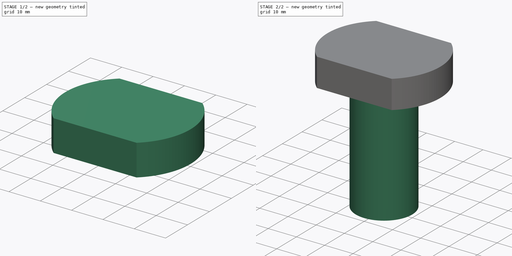
[diagram: build sequence overview — one tinted view per stage of 2, left to right]
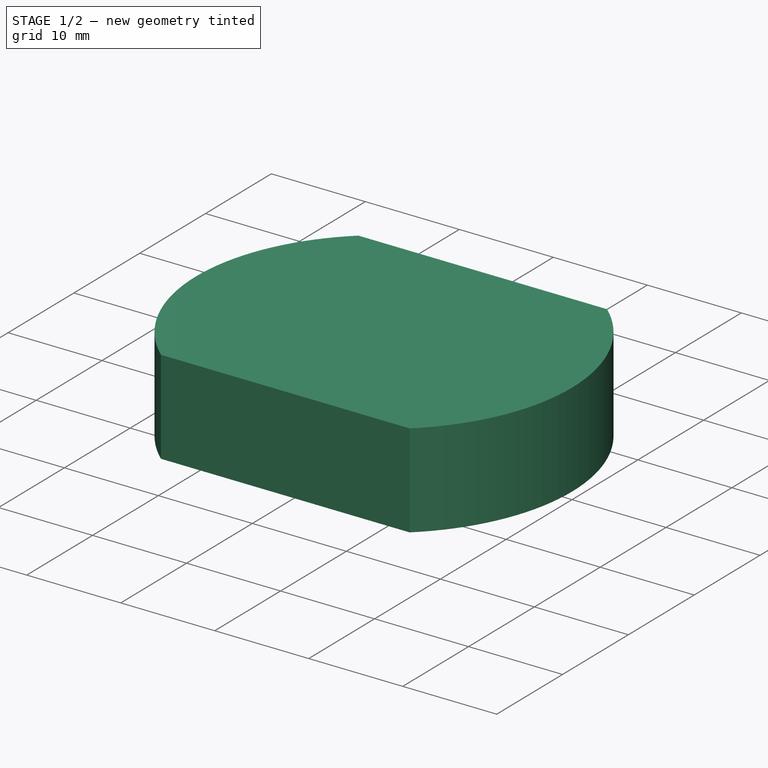
[diagram: stage 1 of 2 — iso view after this stage's code; geometry added in this stage tinted green]
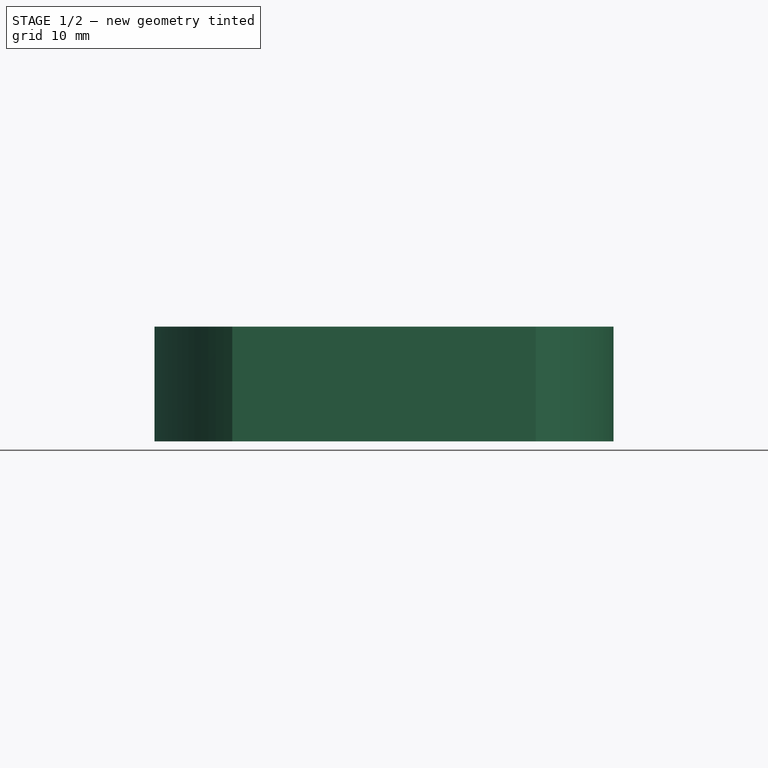
[diagram: stage 1 of 2 — front view after this stage's code; geometry added in this stage tinted green]
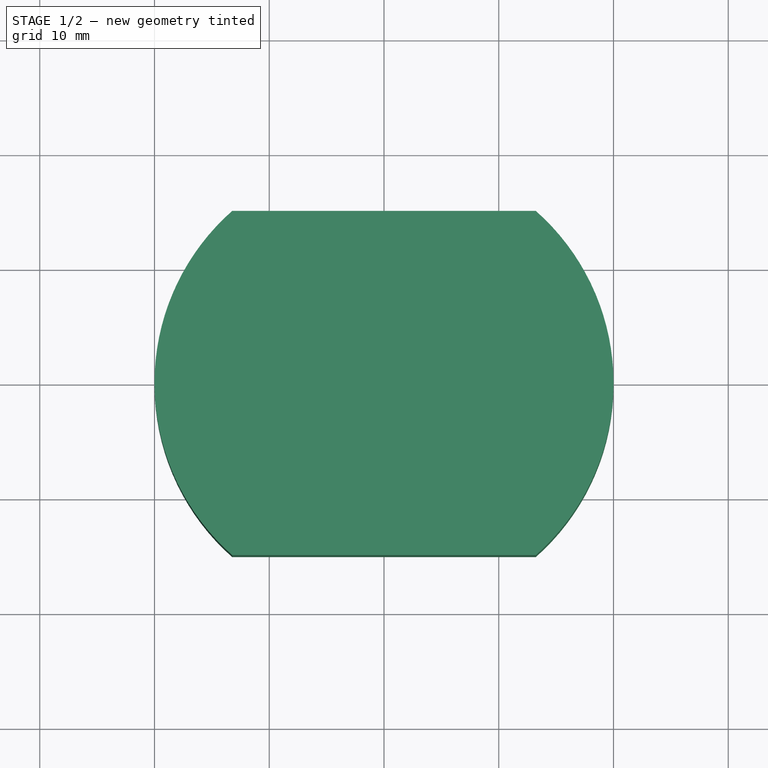
[diagram: stage 1 of 2 — top view after this stage's code; geometry added in this stage tinted green]
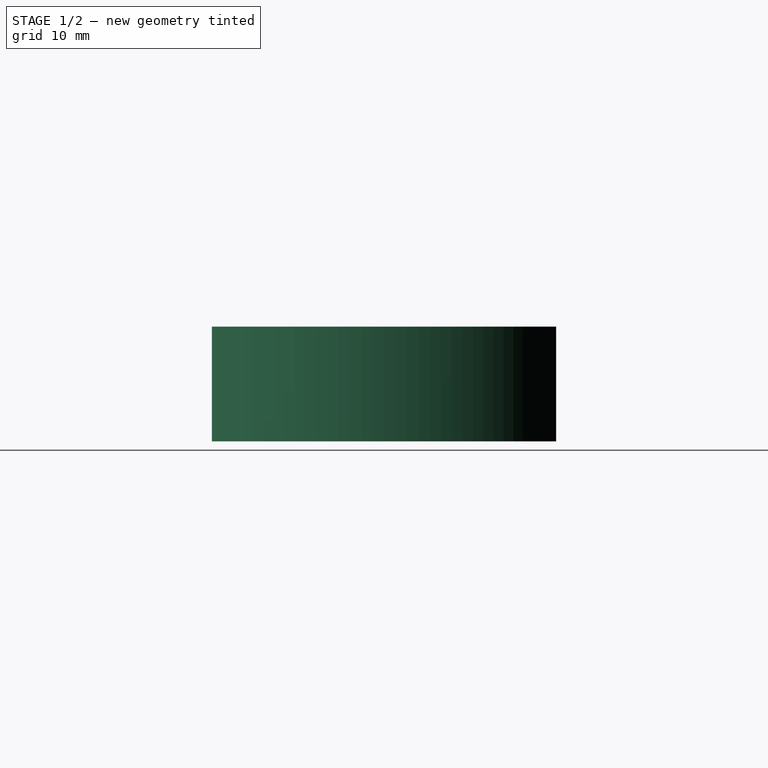
[diagram: stage 1 of 2 — right view after this stage's code; geometry added in this stage tinted green]
FCSTD DOCUMENT  (FreeCAD 0.21R33771 (Git))
Label: ChiocciolaRicircolo1204
License: All rights reserved
LicenseURL: http://en.wikipedia.org/wiki/All_rights_reserved
objects: Sketcher::SketchObject×4, PartDesign::Pad×2, PartDesign::CoordinateSystem×1, PartDesign::Body×1
note: 10 computed .brp shape members not serialized (recipe doc carries the construction recipe); baked Part::Feature solids carry a one-line shape summary decoded from their .brp

FEATURE [Sketcher::SketchObject] Sketch
  FullyConstrained = true
  MapMode = 5
  Support = -> [XY_Plane]
  sketch-geometry (4):
    g0: ArcOfCircle CenterX=0 CenterY=0 CenterZ=0 NormalX=0 NormalY=0 NormalZ=1 AngleXU=0 Radius=20 StartAngle=5.43512 EndAngle=7.13125
    g1: LineSegment StartX=-13.2288 StartY=15 StartZ=0 EndX=13.2288 EndY=15 EndZ=0
    g2: LineSegment StartX=-13.2288 StartY=-15 StartZ=0 EndX=13.2288 EndY=-15 EndZ=0
    g3: ArcOfCircle CenterX=0 CenterY=0 CenterZ=0 NormalX=0 NormalY=0 NormalZ=1 AngleXU=0 Radius=20 StartAngle=2.29353 EndAngle=3.98965
  constraints (12):
    c: Coincident(g0,g-1)
    c: Radius(g0) = 20
    c: Horizontal(g1)
    c: Horizontal(g2)
    c: Coincident(g2,g0)
    c: Coincident(g2,g3)
    c: Equal(g0,g3)
    c: Coincident(g0,g3)
    c: Coincident(g1,g3)
    c: DistanceY(g2,g1) = 30
    c: Coincident(g1,g0)
    c: Equal(g2,g1)
FEATURE [PartDesign::Pad] Pad
  Direction = (0,0,1)
  Length = 10
  Length2 = 10
  Profile = -> Sketch
  ReferenceAxis = -> Sketch [N_Axis]
  Type = 0
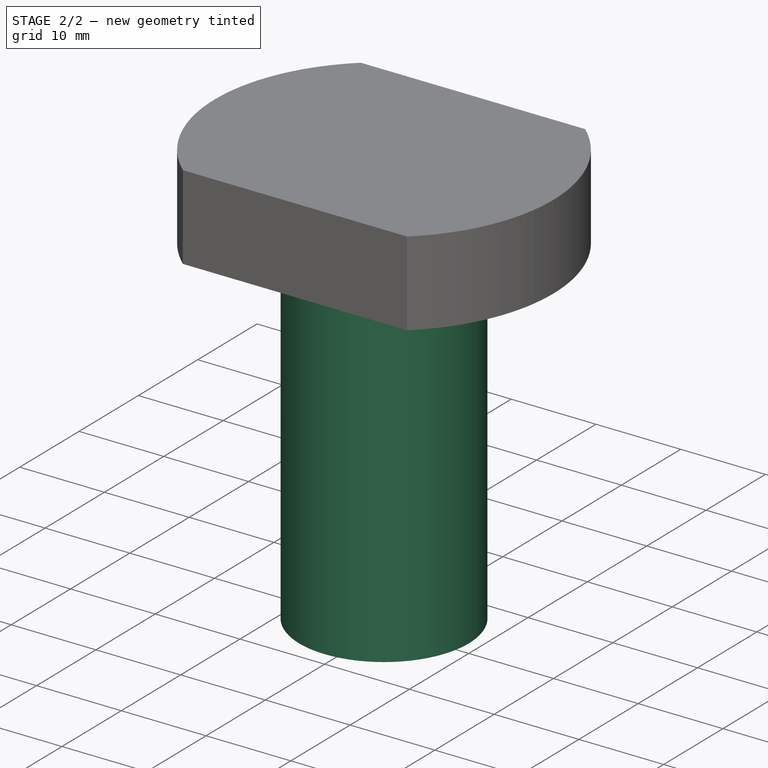
[diagram: stage 2 of 2 — iso view after this stage's code; geometry added in this stage tinted green]
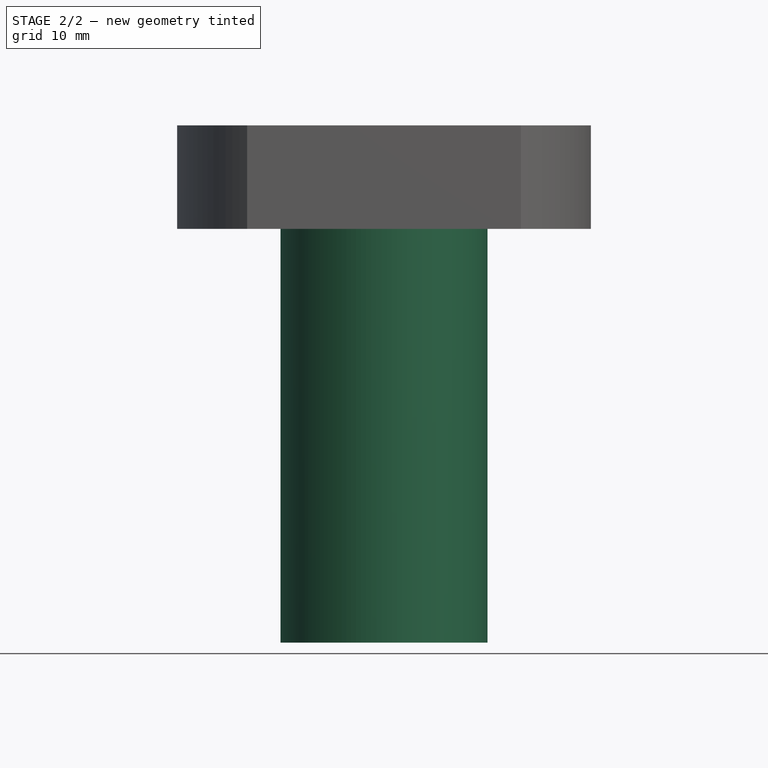
[diagram: stage 2 of 2 — front view after this stage's code; geometry added in this stage tinted green]
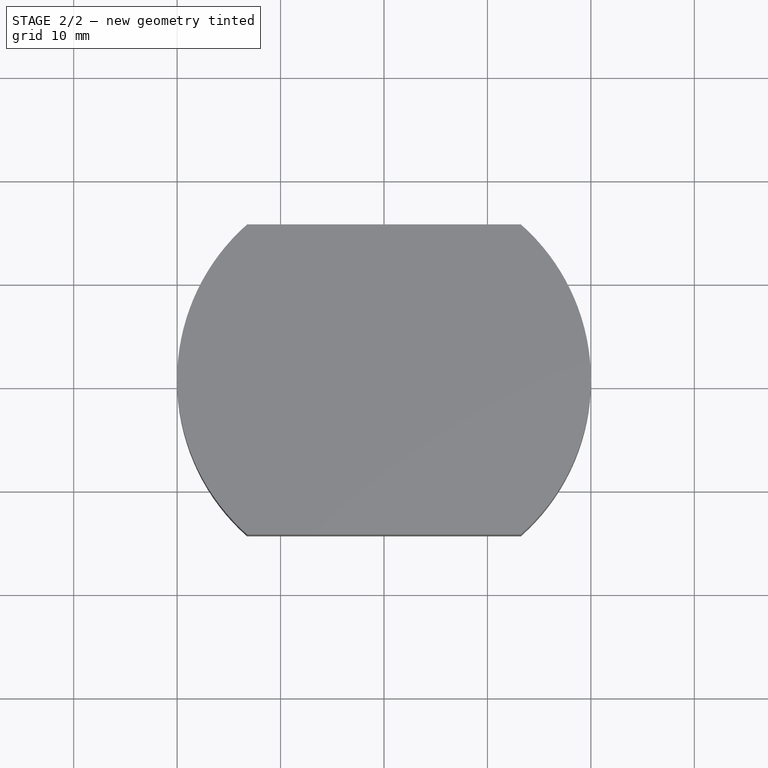
[diagram: stage 2 of 2 — top view after this stage's code; geometry added in this stage tinted green]
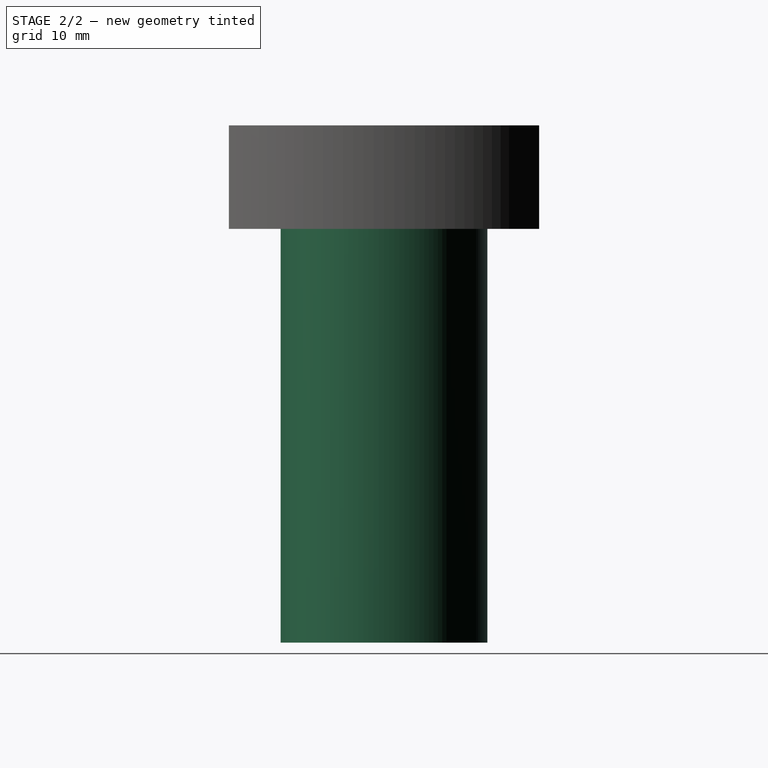
[diagram: stage 2 of 2 — right view after this stage's code; geometry added in this stage tinted green]
FEATURE [Sketcher::SketchObject] Sketch001
  FullyConstrained = true
  MapMode = 5
  Support = -> [XY_Plane]
  sketch-geometry (1):
    g0: Circle CenterX=0 CenterY=0 CenterZ=0 NormalX=0 NormalY=0 NormalZ=1 AngleXU=0 Radius=10
  constraints (2):
    c: Coincident(g0,g-1)
    c: Radius(g0) = 10
FEATURE [PartDesign::Pad] Pad001
  BaseFeature = -> Pad
  Direction = (0,0,1)
  Length = 40
  Length2 = 10
  Profile = -> Sketch001
  ReferenceAxis = -> Sketch001 [N_Axis]
  Reversed = true
  Type = 0
FEATURE [Sketcher::SketchObject] Sketch002
  FullyConstrained = true
  MapMode = 5
  Placement = pos=(0,0,10) rot=(0,0,1;0rad)
  Support = -> [Pad001]
  sketch-geometry (1):
    g0: Circle CenterX=0 CenterY=0 CenterZ=0 NormalX=0 NormalY=0 NormalZ=1 AngleXU=0 Radius=6
  constraints (2):
    c: Coincident(g0,g-1)
    c: Radius(g0) = 6
FEATURE [Sketcher::SketchObject] Sketch003
  FullyConstrained = false
  MapMode = 5
  Support = -> [XY_Plane]
  sketch-geometry (9):
    g0: Circle CenterX=-16 CenterY=0 CenterZ=0 NormalX=0 NormalY=0 NormalZ=1 AngleXU=0 Radius=2.4
    g1: Circle CenterX=16 CenterY=0 CenterZ=0 NormalX=0 NormalY=0 NormalZ=1 AngleXU=0 Radius=2.4
    g2: Circle CenterX=0 CenterY=0 CenterZ=0 NormalX=0 NormalY=0 NormalZ=1 AngleXU=0 Radius=16
    g3: Circle CenterX=11.3137 CenterY=11.3137 CenterZ=0 NormalX=0 NormalY=0 NormalZ=1 AngleXU=0 Radius=2.4
    g4: Circle CenterX=11.3137 CenterY=-11.3137 CenterZ=0 NormalX=0 NormalY=0 NormalZ=1 AngleXU=0 Radius=2.4
    g5: Circle CenterX=-11.3137 CenterY=-11.3137 CenterZ=0 NormalX=0 NormalY=0 NormalZ=1 AngleXU=0 Radius=2.4
    g6: Circle CenterX=-11.3137 CenterY=11.3137 CenterZ=0 NormalX=0 NormalY=0 NormalZ=1 AngleXU=0 Radius=2.4
    g7: LineSegment StartX=21.42 StartY=21.42 StartZ=0 EndX=-22.5026 EndY=-22.5026 EndZ=0
    g8: LineSegment StartX=-18.9489 StartY=18.9489 StartZ=0 EndX=21.7668 EndY=-21.7668 EndZ=0
  constraints (24):
    c: PointOnObject(g0,g-1)
    c: PointOnObject(g1,g-1)
    c: Coincident(g2,g-1)
    c: Radius(g2) = 16
    c: Radius(g3) = 2.4
    c: Equal(g3,g1)
    c: Equal(g1,g4)
    c: Equal(g4,g5)
    c: Equal(g5,g0)
    c: Equal(g0,g6)
    c: PointOnObject(g2,g8)
    c: PointOnObject(g2,g7)
    c: Angle(g7,g-1) = 2.35619
    c: Angle(g8,g-1) = 0.785398
    c: PointOnObject(g6,g2)
    c: PointOnObject(g0,g2)
    c: PointOnObject(g5,g2)
    c: PointOnObject(g3,g2)
    c: PointOnObject(g1,g2)
    c: PointOnObject(g4,g2)
    c: PointOnObject(g3,g7)
    c: PointOnObject(g4,g8)
    c: PointOnObject(g5,g7)
    c: PointOnObject(g6,g8)
FEATURE [PartDesign::CoordinateSystem] LCS_ChiocciolaRicircolo_12  label="LCS_ChiocciolaRicircolo-12"
  AttacherType = Attacher::AttachEngine3D
  MapMode = 11
  Placement = pos=(0,0,10) rot=(0,0,1;1.5708rad)
FEATURE [PartDesign::Body] Body  label="Corpo"
  Group = -> [Sketch,Pad,Sketch001,Pad001,Sketch002,Sketch003,LCS_ChiocciolaRicircolo_12]
  Origin = -> Origin
  Tip = -> Pad001
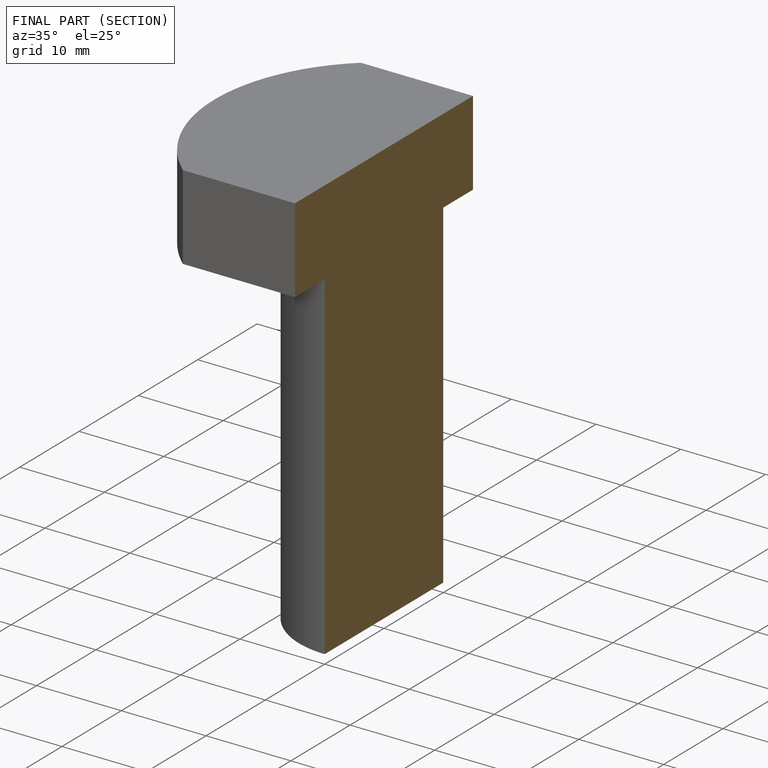
[diagram: finished part — half-section view (interior)]
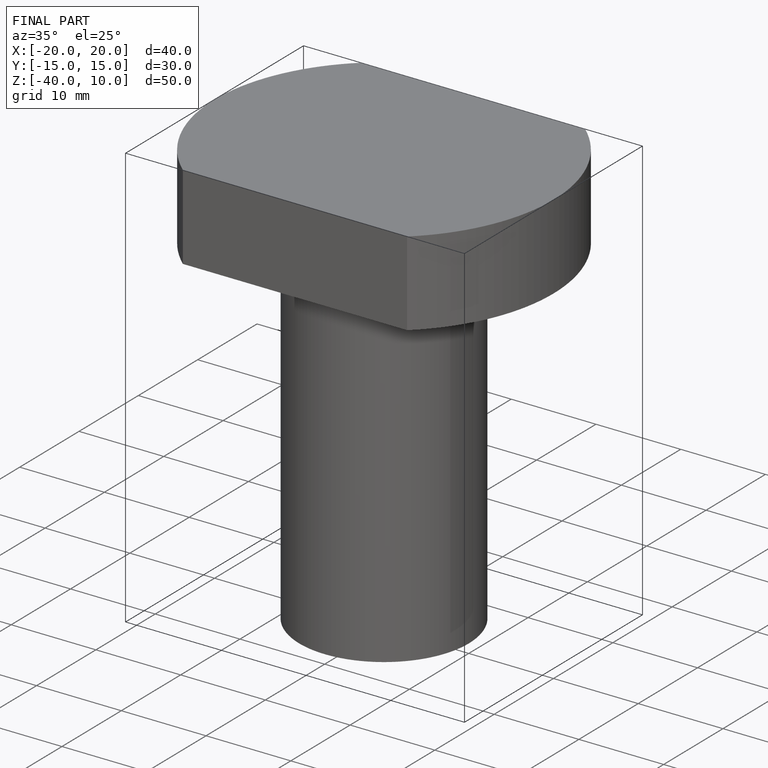
[diagram: finished part — iso view with bounding-box wireframe]
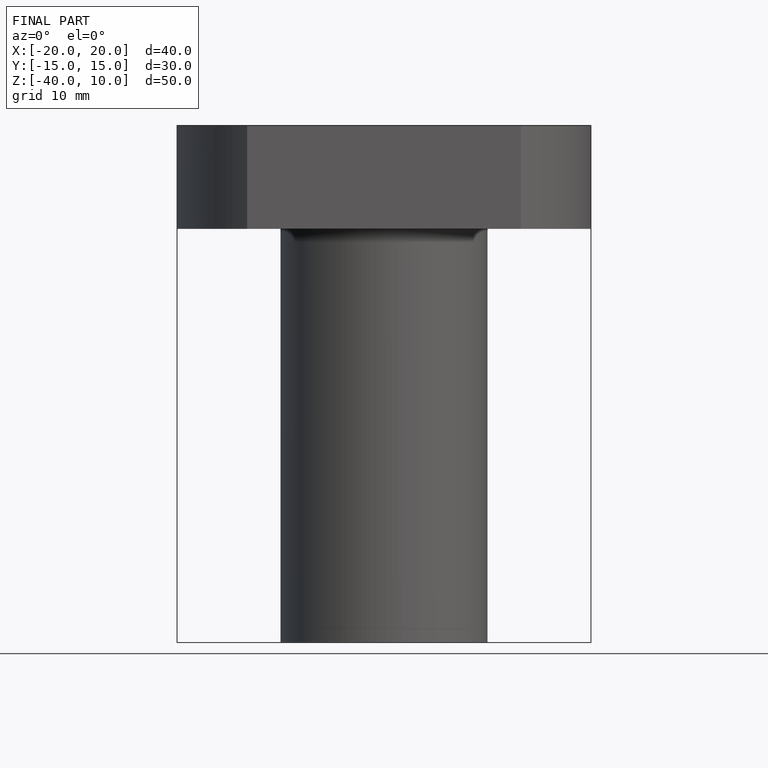
[diagram: finished part — front view with bounding-box wireframe]
